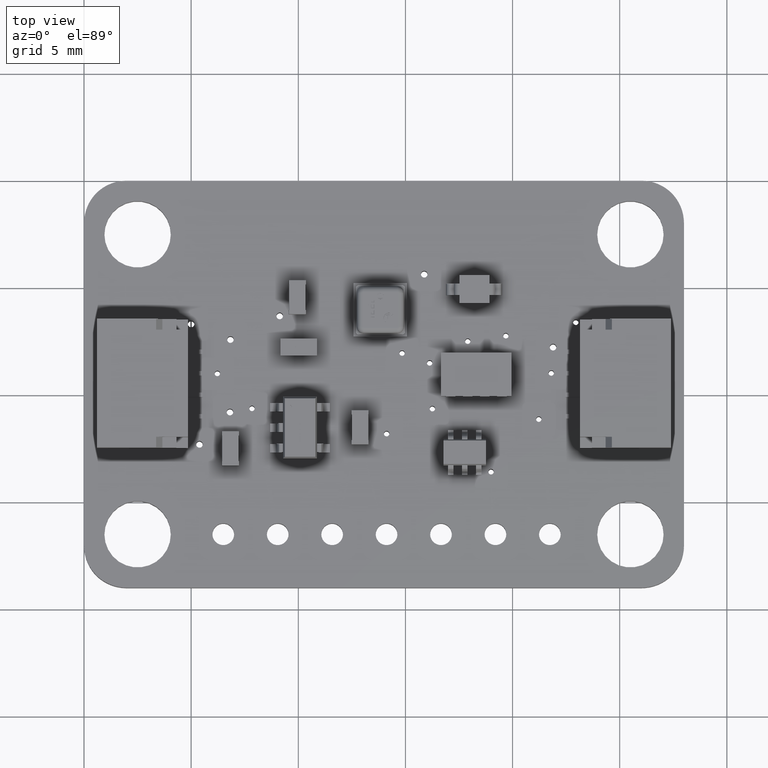
[diagram: clean part render]
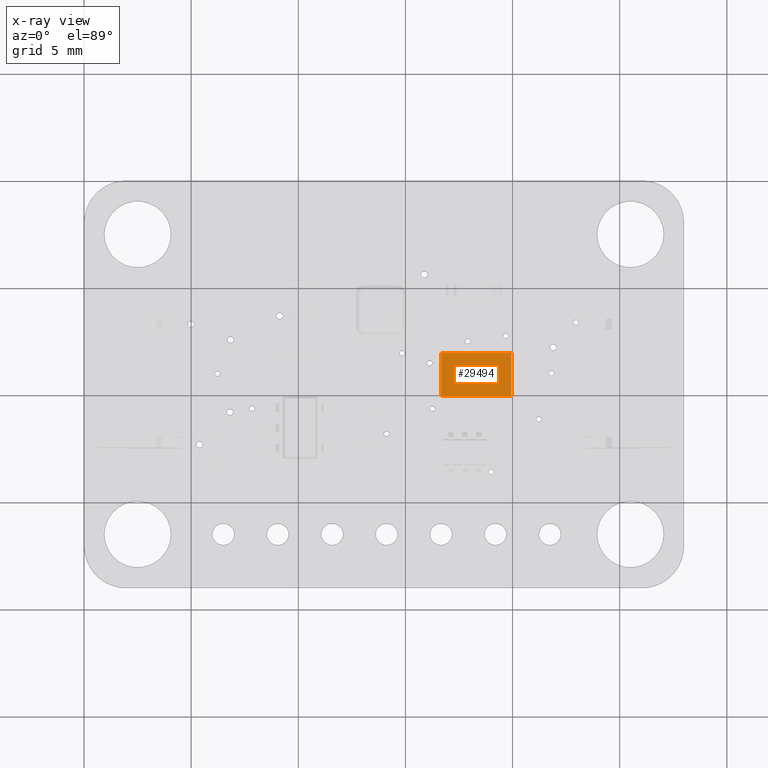
[diagram: x-ray — body ghosted, one internal face saturated and labeled with its STEP entity id]
A machine part, top view, then the same camera in x-ray: the body is ghosted and one INTERNAL B-rep face — a face not visible from any outside direction — is saturated and labeled: STEP entity #29494.
In plain terms, the highlighted planar face has unit normal (0, 0, 1).
Its self-contained STEP definition (entity closure, byte-faithful):
#29375 = VERTEX_POINT('',#29376);
#29376 = CARTESIAN_POINT('',(-0.215,-2.04,1.E-002));
#29384 = EDGE_CURVE('',#29375,#29385,#29387,.T.);
#29385 = VERTEX_POINT('',#29386);
#29386 = CARTESIAN_POINT('',(-0.215,1.24,1.E-002));
#29387 = LINE('',#29388,#29389);
#29388 = CARTESIAN_POINT('',(-0.215,-2.04,1.E-002));
#29389 = VECTOR('',#29390,1.);
#29390 = DIRECTION('',(-0.E+000,1.,0.E+000));
#29415 = VERTEX_POINT('',#29416);
#29416 = CARTESIAN_POINT('',(1.815,-2.04,1.E-002));
#29424 = EDGE_CURVE('',#29415,#29425,#29427,.T.);
#29425 = VERTEX_POINT('',#29426);
#29426 = CARTESIAN_POINT('',(1.815,1.24,1.E-002));
#29427 = LINE('',#29428,#29429);
#29428 = CARTESIAN_POINT('',(1.815,-2.04,1.E-002));
#29429 = VECTOR('',#29430,1.);
#29430 = DIRECTION('',(-0.E+000,1.,0.E+000));
#29454 = EDGE_CURVE('',#29375,#29415,#29455,.T.);
#29455 = LINE('',#29456,#29457);
#29456 = CARTESIAN_POINT('',(-0.215,-2.04,1.E-002));
#29457 = VECTOR('',#29458,1.);
#29458 = DIRECTION('',(1.,0.E+000,-0.E+000));
#29476 = EDGE_CURVE('',#29385,#29425,#29477,.T.);
#29477 = LINE('',#29478,#29479);
#29478 = CARTESIAN_POINT('',(-0.215,1.24,1.E-002));
#29479 = VECTOR('',#29480,1.);
#29480 = DIRECTION('',(1.,0.E+000,-0.E+000));
#29494 = ADVANCED_FACE('',(#29495),#29501,.F.);
#29495 = FACE_BOUND('',#29496,.F.);
#29496 = EDGE_LOOP('',(#29497,#29498,#29499,#29500));
#29497 = ORIENTED_EDGE('',*,*,#29384,.F.);
#29498 = ORIENTED_EDGE('',*,*,#29454,.T.);
#29499 = ORIENTED_EDGE('',*,*,#29424,.T.);
#29500 = ORIENTED_EDGE('',*,*,#29476,.F.);
#29501 = PLANE('',#29502);
#29502 = AXIS2_PLACEMENT_3D('',#29503,#29504,#29505);
#29503 = CARTESIAN_POINT('',(-0.215,-2.04,1.E-002));
#29504 = DIRECTION('',(0.E+000,0.E+000,1.));
#29505 = DIRECTION('',(1.,0.E+000,-0.E+000));